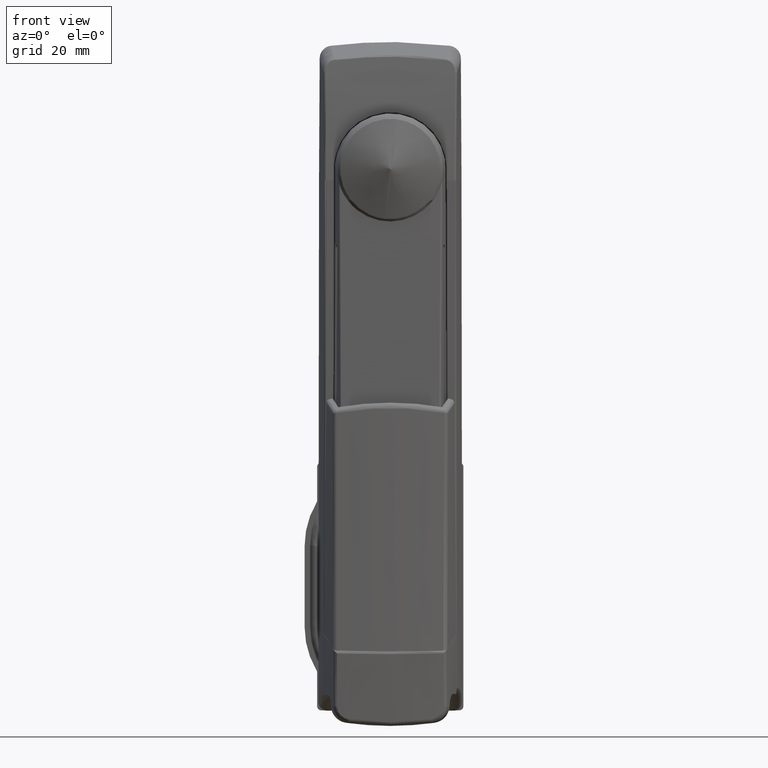
[diagram: clean part render]
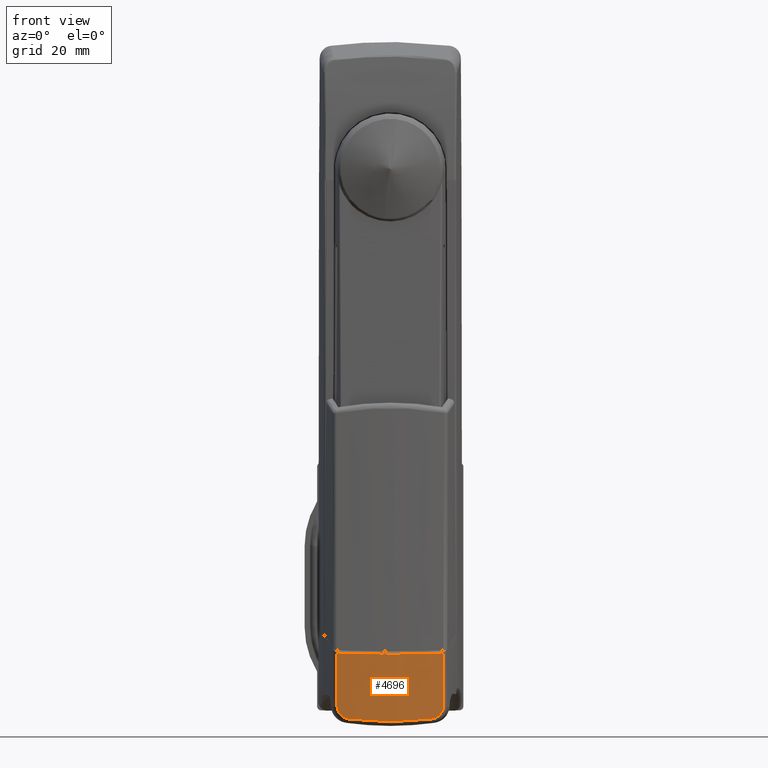
[diagram: same view with one face highlighted and labeled with its STEP entity id]
A machine part, front view. The second image highlights one B-rep face of the part: STEP entity #4696.
In plain terms, the highlighted face is a freeform B-spline surface patch.
Its self-contained STEP definition (entity closure, byte-faithful):
#2308=CARTESIAN_POINT('',(-23.413715208301351,9.924983579047622,-131.658209369090600));
#2309=VERTEX_POINT('',#2308);
#2335=CARTESIAN_POINT('',(-23.709062266553300,-3.668584E-009,-132.318450273333010));
#2336=VERTEX_POINT('',#2335);
#2350=CARTESIAN_POINT('',(-23.413715208301351,9.924983579047611,-131.658209369090600));
#2351=CARTESIAN_POINT('',(-23.511729664635901,8.279579737080521,-131.878109067621010));
#2352=CARTESIAN_POINT('',(-23.659369659314070,4.980011278484007,-132.207859208951310));
#2353=CARTESIAN_POINT('',(-23.709062272653970,1.662948961420927,-132.318450273333010));
#2354=CARTESIAN_POINT('',(-23.709062266553300,-3.668584E-009,-132.318450273333010));
#2355=B_SPLINE_CURVE_WITH_KNOTS('',3,(#2350,#2351,#2352,#2353,#2354),.UNSPECIFIED.,.F.,.U.,(4,1,4),(0.0,0.500000000000000,1.0),.UNSPECIFIED.);
#2356=EDGE_CURVE('',#2309,#2336,#2355,.T.);
#2441=CARTESIAN_POINT('',(-23.413715123931901,-9.924983778081121,-131.658209369090600));
#2442=VERTEX_POINT('',#2441);
#2456=CARTESIAN_POINT('',(-23.709062266553300,-3.668584E-009,-132.318450273333010));
#2457=CARTESIAN_POINT('',(-23.709062260452630,-1.662949001298323,-132.318450277643000));
#2458=CARTESIAN_POINT('',(-23.659370300974508,-4.980011431983787,-132.207859651956510));
#2459=CARTESIAN_POINT('',(-23.511729596171381,-8.279579904751296,-131.878109071923890));
#2460=CARTESIAN_POINT('',(-23.413715123931851,-9.924983778081131,-131.658209369090600));
#2461=B_SPLINE_CURVE_WITH_KNOTS('',3,(#2456,#2457,#2458,#2459,#2460),.UNSPECIFIED.,.F.,.U.,(4,1,4),(0.0,0.500000000000000,1.0),.UNSPECIFIED.);
#2462=EDGE_CURVE('',#2336,#2442,#2461,.T.);
#2610=CARTESIAN_POINT('',(-23.223444298058151,12.722923774267221,-128.649094380276610));
#2611=VERTEX_POINT('',#2610);
#2652=CARTESIAN_POINT('',(-23.223444298058151,12.722923774267221,-128.649094380276610));
#2653=CARTESIAN_POINT('',(-23.223468657408919,12.722605138366900,-128.838357010077290));
#2654=CARTESIAN_POINT('',(-23.224944712163211,12.703335959981411,-129.023792931577390));
#2655=CARTESIAN_POINT('',(-23.230556728425729,12.629598090796719,-129.387557445993310));
#2656=CARTESIAN_POINT('',(-23.234698650784551,12.575053505960220,-129.566032862787610));
#2657=CARTESIAN_POINT('',(-23.245601456289119,12.429908675279391,-129.915050672280610));
#2658=CARTESIAN_POINT('',(-23.252166691000870,12.341891084398840,-130.079497559798990));
#2659=CARTESIAN_POINT('',(-23.263438793128621,12.188590095303530,-130.312313422975510));
#2660=CARTESIAN_POINT('',(-23.267435262568132,12.133917716111601,-130.387592518598610));
#2661=CARTESIAN_POINT('',(-23.273770994495870,12.046575020916841,-130.497038230706690));
#2662=CARTESIAN_POINT('',(-23.275939822884929,12.016570406396410,-130.532940426614200));
#2663=CARTESIAN_POINT('',(-23.280389305652101,11.954767921240990,-130.603577403322300));
#2664=CARTESIAN_POINT('',(-23.282675586222322,11.922891183112190,-130.638393323118210));
#2665=CARTESIAN_POINT('',(-23.294312800915581,11.759949324150250,-130.808500300326190));
#2666=CARTESIAN_POINT('',(-23.304193318685279,11.619453284163839,-130.930914066614600));
#2667=CARTESIAN_POINT('',(-23.319679963367939,11.394618255396891,-131.095552311441990));
#2668=CARTESIAN_POINT('',(-23.324954271532491,11.317308521000619,-131.147246096122300));
#2669=CARTESIAN_POINT('',(-23.335706605901319,11.157969388676539,-131.244277436704890));
#2670=CARTESIAN_POINT('',(-23.341192826228401,11.075816167377830,-131.289674934629090));
#2671=CARTESIAN_POINT('',(-23.357884254733928,10.822901688939890,-131.415755774086790));
#2672=CARTESIAN_POINT('',(-23.369065228365489,10.649585833562670,-131.484550854272810));
#2673=CARTESIAN_POINT('',(-23.391415379304249,10.294050080952740,-131.593294595151090));
#2674=CARTESIAN_POINT('',(-23.402585097390759,10.111828743920659,-131.633238480863610));
#2675=CARTESIAN_POINT('',(-23.413715208301301,9.924983579048041,-131.658209369091400));
#2676=B_SPLINE_CURVE_WITH_KNOTS('',3,(#2652,#2653,#2654,#2655,#2656,#2657,#2658,#2659,#2660,#2661,#2662,#2663,#2664,#2665,#2666,#2667,#2668,#2669,#2670,#2671,#2672,#2673,#2674,#2675),.UNSPECIFIED.,.F.,.U.,(4,2,2,2,2,2,2,2,2,2,2,4),(0.0,0.124999999999990,0.249999999999981,0.374999999999971,0.437499999999966,0.468749999999971,0.499999999999976,0.624999999999981,0.687499999999985,0.749999999999988,0.874999999999994,1.0),.UNSPECIFIED.);
#2677=EDGE_CURVE('',#2611,#2309,#2676,.T.);
#2792=CARTESIAN_POINT('',(-23.223444189904200,-12.722923971683359,-128.649094380276410));
#2793=VERTEX_POINT('',#2792);
#2807=CARTESIAN_POINT('',(-23.413715123931901,-9.924983778081121,-131.658209369090600));
#2808=CARTESIAN_POINT('',(-23.408163888896709,-10.018174338821449,-131.645754933468000));
#2809=CARTESIAN_POINT('',(-23.402579745829900,-10.110600287630289,-131.629501159664500));
#2810=CARTESIAN_POINT('',(-23.391352741232470,-10.293931210595501,-131.589433880570790));
#2811=CARTESIAN_POINT('',(-23.385693468671619,-10.385093303543300,-131.565528685985900));
#2812=CARTESIAN_POINT('',(-23.368821144266150,-10.653420407883720,-131.483213553638900));
#2813=CARTESIAN_POINT('',(-23.357681016903630,-10.825991694347390,-131.414268636880710));
#2814=CARTESIAN_POINT('',(-23.341218100846479,-11.075426093978599,-131.289842720789300));
#2815=CARTESIAN_POINT('',(-23.335772186788340,-11.156991178856250,-131.244845232579710));
#2816=CARTESIAN_POINT('',(-23.324985485357018,-11.316849846789079,-131.147553297547800));
#2817=CARTESIAN_POINT('',(-23.319633737816929,-11.395295433548419,-131.095105233088790));
#2818=CARTESIAN_POINT('',(-23.304055833965169,-11.621433320354310,-130.929365924751100));
#2819=CARTESIAN_POINT('',(-23.294210074528479,-11.761386092973391,-130.806996210171010));
#2820=CARTESIAN_POINT('',(-23.280403118462718,-11.954708770192310,-130.605178986354190));
#2821=CARTESIAN_POINT('',(-23.275962006677069,-12.016366207236830,-130.534845526787990));
#2822=CARTESIAN_POINT('',(-23.267441546484530,-12.133832733706530,-130.387745224050890));
#2823=CARTESIAN_POINT('',(-23.263417548356781,-12.188879615086950,-130.311917549863410));
#2824=CARTESIAN_POINT('',(-23.252114055168491,-12.342602078489691,-130.078330502798310));
#2825=CARTESIAN_POINT('',(-23.245580644362342,-12.430182511424309,-129.914241693179010));
#2826=CARTESIAN_POINT('',(-23.237473751109409,-12.538109448508161,-129.654944613066190));
#2827=CARTESIAN_POINT('',(-23.235048338975918,-12.570242642059080,-129.565894629761200));
#2828=CARTESIAN_POINT('',(-23.230893781373570,-12.625130303713380,-129.386843433315990));
#2829=CARTESIAN_POINT('',(-23.229151429209018,-12.648061579835581,-129.296519427109300));
#2830=CARTESIAN_POINT('',(-23.224936446738180,-12.703443179234480,-129.023174155981200));
#2831=CARTESIAN_POINT('',(-23.223468477789378,-12.722606270634220,-128.837801729418800));
#2832=CARTESIAN_POINT('',(-23.223444189904200,-12.722923971683359,-128.649094380276410));
#2833=B_SPLINE_CURVE_WITH_KNOTS('',3,(#2807,#2808,#2809,#2810,#2811,#2812,#2813,#2814,#2815,#2816,#2817,#2818,#2819,#2820,#2821,#2822,#2823,#2824,#2825,#2826,#2827,#2828,#2829,#2830,#2831,#2832),.UNSPECIFIED.,.F.,.U.,(4,2,2,2,2,2,2,2,2,2,2,2,4),(0.0,0.062499999999993,0.124999999999987,0.249999999999980,0.312499999999976,0.374999999999972,0.499999999999963,0.562499999999965,0.624999999999967,0.749999999999972,0.812499999999974,0.874999999999977,1.0),.UNSPECIFIED.);
#2834=EDGE_CURVE('',#2442,#2793,#2833,.T.);
#2936=CARTESIAN_POINT('',(-23.221813552444601,12.744237014412500,-115.989743022781000));
#2937=VERTEX_POINT('',#2936);
#2938=CARTESIAN_POINT('',(-23.221813552444601,12.744237014412500,-115.989743022781000));
#2939=CARTESIAN_POINT('',(-23.223444298058151,12.722923774267221,-128.649094380276610));
#2940=QUASI_UNIFORM_CURVE('',1,(#2938,#2939),.UNSPECIFIED.,.F.,.U.);
#2941=EDGE_CURVE('',#2937,#2611,#2940,.T.);
#3023=CARTESIAN_POINT('',(-23.221813444104200,-12.744237211883799,-115.989742981788400));
#3024=VERTEX_POINT('',#3023);
#3052=CARTESIAN_POINT('',(-23.223444189904200,-12.722923971683359,-128.649094380276410));
#3053=CARTESIAN_POINT('',(-23.221813444104200,-12.744237211883799,-115.989742981788400));
#3054=QUASI_UNIFORM_CURVE('',1,(#3052,#3053),.UNSPECIFIED.,.F.,.U.);
#3055=EDGE_CURVE('',#2793,#3024,#3054,.T.);
#3134=CARTESIAN_POINT('',(-23.221813444104200,-12.744237211883760,-115.989742981788400));
#3135=CARTESIAN_POINT('',(-23.546578123558820,-8.503253853568614,-116.112624775767300));
#3136=CARTESIAN_POINT('',(-23.709062248429142,-4.255179090605465,-116.174239609058110));
#3137=CARTESIAN_POINT('',(-23.709062284677469,4.255178886069515,-116.174239622793610));
#3138=CARTESIAN_POINT('',(-23.546578195876180,8.503253652944080,-116.112624803170110));
#3139=CARTESIAN_POINT('',(-23.221813552444651,12.744237014412500,-115.989743022781200));
#3140=B_SPLINE_CURVE_WITH_KNOTS('',3,(#3134,#3135,#3136,#3137,#3138,#3139),.UNSPECIFIED.,.F.,.U.,(4,2,4),(0.0,0.500000000000000,1.0),.UNSPECIFIED.);
#3141=EDGE_CURVE('',#3024,#2937,#3140,.T.);
#4673=CARTESIAN_POINT('',(-23.119881478513495,-14.011877267143090,-132.726667955621540));
#4674=CARTESIAN_POINT('',(-23.119881478513495,-14.011877267143090,-115.571319857442520));
#4675=CARTESIAN_POINT('',(-24.300433577919506,0.001227763938639,-132.726667955621680));
#4676=CARTESIAN_POINT('',(-24.300433577919506,0.001227763938639,-115.571319857442520));
#4677=CARTESIAN_POINT('',(-23.119676151398359,14.014315495457879,-132.726667955621590));
#4678=CARTESIAN_POINT('',(-23.119676151398359,14.014315495457879,-115.571319857442560));
#4686=(BOUNDED_SURFACE()B_SPLINE_SURFACE(1,2,((#4673,#4675,#4677),(#4674,#4676,#4678)),.UNSPECIFIED.,.F.,.F.,.U.)B_SPLINE_SURFACE_WITH_KNOTS((2,2),(3,3),(0.0,17.155348098179061),(3.837830925536156,31.917613124299049),.UNSPECIFIED.)GEOMETRIC_REPRESENTATION_ITEM()RATIONAL_B_SPLINE_SURFACE(((0.998630984447851,0.994104196779402,0.996622768516158),(0.998630984447851,0.994104196779402,0.996622768516158)))REPRESENTATION_ITEM('')SURFACE());
#4687=ORIENTED_EDGE('',*,*,#2677,.T.);
#4688=ORIENTED_EDGE('',*,*,#2356,.T.);
#4689=ORIENTED_EDGE('',*,*,#2462,.T.);
#4690=ORIENTED_EDGE('',*,*,#2834,.T.);
#4691=ORIENTED_EDGE('',*,*,#3055,.T.);
#4692=ORIENTED_EDGE('',*,*,#3141,.T.);
#4693=ORIENTED_EDGE('',*,*,#2941,.T.);
#4694=EDGE_LOOP('',(#4687,#4688,#4689,#4690,#4691,#4692,#4693));
#4695=FACE_OUTER_BOUND('',#4694,.T.);
#4696=ADVANCED_FACE('',(#4695),#4686,.T.);